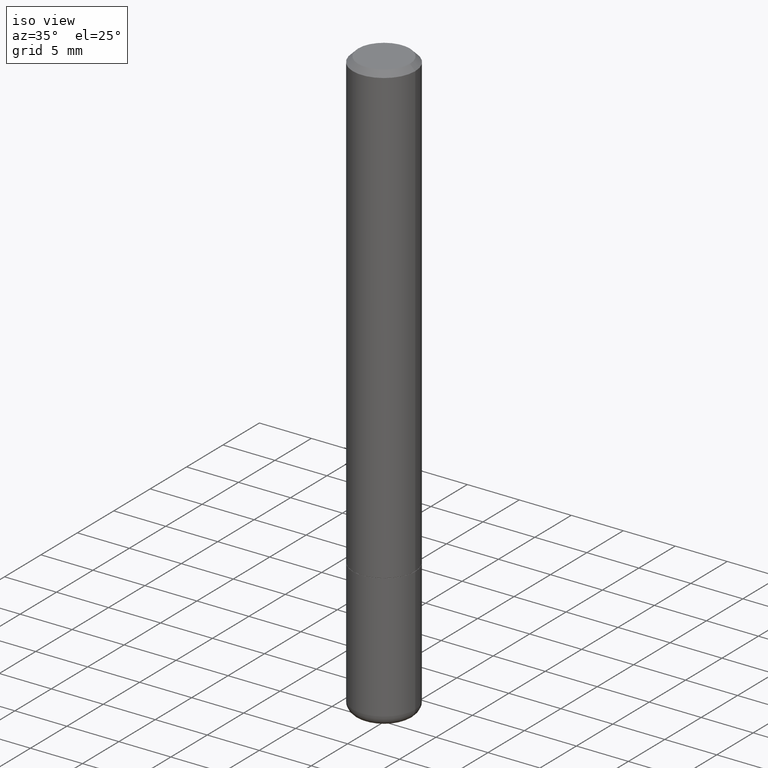
[diagram: clean part render]
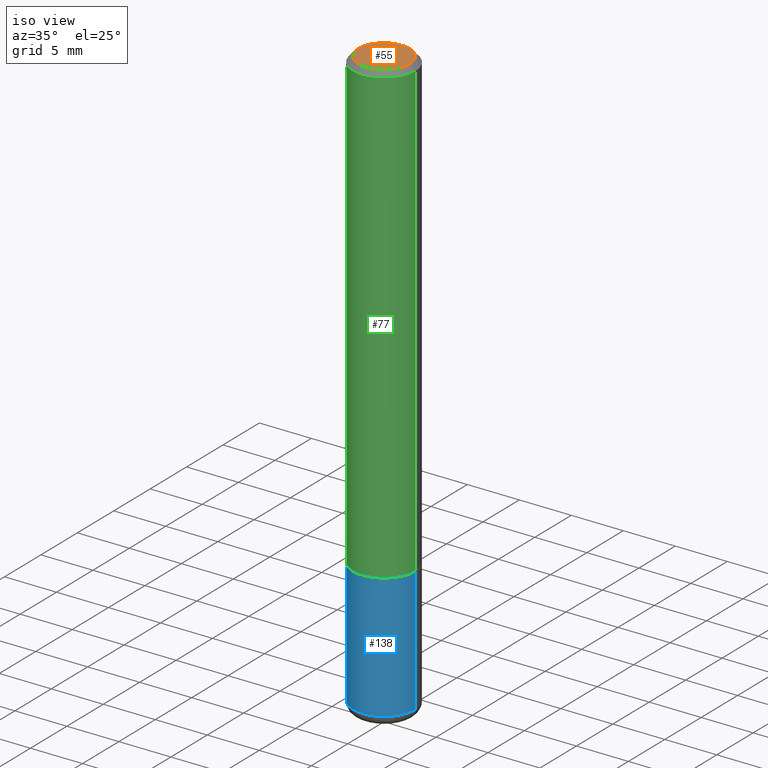
[diagram: same view with three faces highlighted in distinct colors, each labeled with its STEP entity id]
A machine part, iso view with three faces highlighted in distinct colors.
Their STEP definitions:

[orange] entity #55 — the highlighted planar face has unit normal (0, -0, -1).
#3 = CIRCLE ( 'NONE', #148, 0.09809999999999970133 ) ;
#31 = CARTESIAN_POINT ( 'NONE',  ( 6.850286386810205815E-16, 0.09809999999999970133, -1.653710510013444322E-16 ) ) ;
#45 = EDGE_CURVE ( 'NONE', #176, #153, #193, .T. ) ;
#55 = ADVANCED_FACE ( 'NONE', ( #83 ), #209, .F. ) ;
#58 = CARTESIAN_POINT ( 'NONE',  ( -8.663966738982324366E-45, 1.236984831415771234E-30, 3.542865366783341331E-16 ) ) ;
#83 = FACE_OUTER_BOUND ( 'NONE', #290, .T. ) ;
#129 = DIRECTION ( 'NONE',  ( -2.445468806185136597E-29, 3.491481338843145583E-15, 1.000000000000000000 ) ) ;
#148 = AXIS2_PLACEMENT_3D ( 'NONE', #283, #129, #415 ) ;
#152 = ORIENTED_EDGE ( 'NONE', *, *, #197, .T. ) ;
#153 = VERTEX_POINT ( 'NONE', #253 ) ;
#163 = DIRECTION ( 'NONE',  ( -1.000000000000000000, 6.982962677686265922E-15, -4.876176775795935793E-29 ) ) ;
#176 = VERTEX_POINT ( 'NONE', #192 ) ;
#192 = CARTESIAN_POINT ( 'NONE',  ( 0.09809999999999970133, -7.765346469475326737E-16, 3.542865366783392114E-16 ) ) ;
#193 = CIRCLE ( 'NONE', #362, 0.09809999999999970133 ) ;
#197 = EDGE_CURVE ( 'NONE', #153, #176, #3, .T. ) ;
#209 = PLANE ( 'NONE',  #296 ) ;
#212 = ORIENTED_EDGE ( 'NONE', *, *, #45, .T. ) ;
#253 = CARTESIAN_POINT ( 'NONE',  ( -0.09809999999999970133, 7.199434520694536111E-16, 3.542865366783292027E-16 ) ) ;
#283 = CARTESIAN_POINT ( 'NONE',  ( -8.663966738982324366E-45, 1.236984831415771234E-30, 3.542865366783341331E-16 ) ) ;
#290 = EDGE_LOOP ( 'NONE', ( #152, #212 ) ) ;
#296 = AXIS2_PLACEMENT_3D ( 'NONE', #31, #316, #163 ) ;
#316 = DIRECTION ( 'NONE',  ( 2.438088387897960049E-29, -3.491481338843145188E-15, -1.000000000000000000 ) ) ;
#362 = AXIS2_PLACEMENT_3D ( 'NONE', #58, #371, #401 ) ;
#371 = DIRECTION ( 'NONE',  ( -2.445468806185136597E-29, 3.491481338843145583E-15, 1.000000000000000000 ) ) ;
#401 = DIRECTION ( 'NONE',  ( 1.000000000000000000, -6.982962677686266711E-15, 4.884890577880263287E-29 ) ) ;
#415 = DIRECTION ( 'NONE',  ( 1.000000000000000000, -6.982962677686266711E-15, 4.884890577880263287E-29 ) ) ;

[blue] entity #138 — the highlighted cylindrical surface (partial cylindrical patch) has radius 2.9997 mm, axis along (-0, 0, 1).
#5 = EDGE_LOOP ( 'NONE', ( #274, #294, #136, #409 ) ) ;
#13 = EDGE_CURVE ( 'NONE', #407, #301, #51, .T. ) ;
#29 = CARTESIAN_POINT ( 'NONE',  ( 4.236285612954512392E-29, -6.048293123277981078E-15, -1.732299999999999951 ) ) ;
#51 = LINE ( 'NONE', #155, #333 ) ;
#59 = EDGE_CURVE ( 'NONE', #301, #81, #231, .T. ) ;
#67 = CARTESIAN_POINT ( 'NONE',  ( 0.1180999999999999966, -8.246878922347480654E-16, 5.758764772215000440E-30 ) ) ;
#75 = DIRECTION ( 'NONE',  ( -2.445468806185136597E-29, 3.491481338843145583E-15, 1.000000000000000000 ) ) ;
#81 = VERTEX_POINT ( 'NONE', #357 ) ;
#86 = EDGE_CURVE ( 'NONE', #242, #81, #388, .T. ) ;
#103 = CARTESIAN_POINT ( 'NONE',  ( 0.000000000000000000, 0.000000000000000000, 0.000000000000000000 ) ) ;
#104 = CARTESIAN_POINT ( 'NONE',  ( 5.391525076996371277E-29, -7.697668907747483125E-15, -2.204700000000000326 ) ) ;
#135 = CARTESIAN_POINT ( 'NONE',  ( -0.1180999999999998995, -6.858517936814806506E-15, -2.204700000000000326 ) ) ;
#136 = ORIENTED_EDGE ( 'NONE', *, *, #86, .T. ) ;
#138 = ADVANCED_FACE ( 'NONE', ( #255 ), #317, .T. ) ;
#155 = CARTESIAN_POINT ( 'NONE',  ( -0.1180999999999999966, 8.391509709326782957E-16, -5.809262341591043784E-30 ) ) ;
#165 = AXIS2_PLACEMENT_3D ( 'NONE', #103, #381, #251 ) ;
#178 = DIRECTION ( 'NONE',  ( -2.445468806185136877E-29, 3.491481338843145188E-15, 1.000000000000000000 ) ) ;
#186 = DIRECTION ( 'NONE',  ( -2.445468806185136877E-29, 3.491481338843145188E-15, 1.000000000000000000 ) ) ;
#231 = CIRCLE ( 'NONE', #402, 0.1180999999999999966 ) ;
#234 = DIRECTION ( 'NONE',  ( 1.000000000000000000, -6.982962677686265133E-15, 0.000000000000000000 ) ) ;
#242 = VERTEX_POINT ( 'NONE', #284 ) ;
#251 = DIRECTION ( 'NONE',  ( 1.000000000000000000, -6.982962677686266711E-15, 4.876176775795936353E-29 ) ) ;
#255 = FACE_OUTER_BOUND ( 'NONE', #5, .T. ) ;
#274 = ORIENTED_EDGE ( 'NONE', *, *, #13, .F. ) ;
#284 = CARTESIAN_POINT ( 'NONE',  ( 0.1180999999999998995, -8.522356799982231388E-15, -2.204700000000000326 ) ) ;
#294 = ORIENTED_EDGE ( 'NONE', *, *, #313, .T. ) ;
#301 = VERTEX_POINT ( 'NONE', #323 ) ;
#313 = EDGE_CURVE ( 'NONE', #407, #242, #414, .T. ) ;
#317 = CYLINDRICAL_SURFACE ( 'NONE', #165, 0.1180999999999999966 ) ;
#323 = CARTESIAN_POINT ( 'NONE',  ( -0.1180999999999999966, -6.033830044580054299E-15, -1.732299999999999951 ) ) ;
#333 = VECTOR ( 'NONE', #178, 39.37007874015748143 ) ;
#349 = AXIS2_PLACEMENT_3D ( 'NONE', #104, #75, #234 ) ;
#357 = CARTESIAN_POINT ( 'NONE',  ( 0.1180999999999999966, -6.872981015512729341E-15, -1.732299999999999951 ) ) ;
#381 = DIRECTION ( 'NONE',  ( -2.445468806185136597E-29, 3.491481338843145583E-15, 1.000000000000000000 ) ) ;
#385 = DIRECTION ( 'NONE',  ( -2.445468806185136597E-29, 3.491481338843145583E-15, 1.000000000000000000 ) ) ;
#387 = VECTOR ( 'NONE', #186, 39.37007874015748143 ) ;
#388 = LINE ( 'NONE', #67, #387 ) ;
#402 = AXIS2_PLACEMENT_3D ( 'NONE', #29, #385, #417 ) ;
#407 = VERTEX_POINT ( 'NONE', #135 ) ;
#409 = ORIENTED_EDGE ( 'NONE', *, *, #59, .F. ) ;
#414 = CIRCLE ( 'NONE', #349, 0.1180999999999999966 ) ;
#417 = DIRECTION ( 'NONE',  ( 1.000000000000000000, -6.982962677686265133E-15, 0.000000000000000000 ) ) ;

[green] entity #77 — the highlighted cylindrical surface (partial cylindrical patch) has radius 2.9997 mm, axis along (-0, 0, 1).
#1 = CARTESIAN_POINT ( 'NONE',  ( 4.890937612370288923E-31, -6.982962677686312563E-17, -0.02000000000000006287 ) ) ;
#7 = ORIENTED_EDGE ( 'NONE', *, *, #195, .T. ) ;
#8 = DIRECTION ( 'NONE',  ( -2.445468806185136877E-29, 3.491481338843145188E-15, 1.000000000000000000 ) ) ;
#18 = VERTEX_POINT ( 'NONE', #346 ) ;
#19 = VECTOR ( 'NONE', #8, 39.37007874015748143 ) ;
#28 = CIRCLE ( 'NONE', #318, 0.1181000000000000383 ) ;
#43 = AXIS2_PLACEMENT_3D ( 'NONE', #386, #352, #233 ) ;
#64 = CARTESIAN_POINT ( 'NONE',  ( 4.233840144148326789E-29, -6.044801641939137282E-15, -1.731299999999999839 ) ) ;
#77 = ADVANCED_FACE ( 'NONE', ( #99 ), #100, .T. ) ;
#78 = ORIENTED_EDGE ( 'NONE', *, *, #124, .F. ) ;
#98 = CARTESIAN_POINT ( 'NONE',  ( -0.1181000000000001215, 8.391509709326791832E-16, -5.809262341591049389E-30 ) ) ;
#99 = FACE_OUTER_BOUND ( 'NONE', #169, .T. ) ;
#100 = CYLINDRICAL_SURFACE ( 'NONE', #43, 0.1181000000000001215 ) ;
#112 = ORIENTED_EDGE ( 'NONE', *, *, #177, .F. ) ;
#124 = EDGE_CURVE ( 'NONE', #299, #368, #28, .T. ) ;
#132 = DIRECTION ( 'NONE',  ( 1.000000000000000000, -6.982962677686266711E-15, 0.000000000000000000 ) ) ;
#137 = LINE ( 'NONE', #391, #19 ) ;
#160 = DIRECTION ( 'NONE',  ( 1.000000000000000000, -6.982962677686268288E-15, 0.000000000000000000 ) ) ;
#169 = EDGE_LOOP ( 'NONE', ( #112, #7, #257, #78 ) ) ;
#177 = EDGE_CURVE ( 'NONE', #183, #299, #321, .T. ) ;
#183 = VERTEX_POINT ( 'NONE', #351 ) ;
#187 = CIRCLE ( 'NONE', #324, 0.1181000000000002048 ) ;
#194 = DIRECTION ( 'NONE',  ( -2.445468806185136597E-29, 3.491481338843145583E-15, 1.000000000000000000 ) ) ;
#195 = EDGE_CURVE ( 'NONE', #183, #18, #187, .T. ) ;
#224 = DIRECTION ( 'NONE',  ( -2.445468806185136877E-29, 3.491481338843145188E-15, 1.000000000000000000 ) ) ;
#233 = DIRECTION ( 'NONE',  ( 1.000000000000000000, -6.982962677686266711E-15, 4.876176775795935793E-29 ) ) ;
#252 = DIRECTION ( 'NONE',  ( -2.445468806185136597E-29, 3.491481338843145583E-15, 1.000000000000000000 ) ) ;
#257 = ORIENTED_EDGE ( 'NONE', *, *, #275, .T. ) ;
#275 = EDGE_CURVE ( 'NONE', #18, #368, #137, .T. ) ;
#299 = VERTEX_POINT ( 'NONE', #364 ) ;
#318 = AXIS2_PLACEMENT_3D ( 'NONE', #1, #252, #132 ) ;
#321 = LINE ( 'NONE', #98, #369 ) ;
#322 = CARTESIAN_POINT ( 'NONE',  ( 0.1181000000000000383, -8.800544403136812319E-16, -0.02000000000000006287 ) ) ;
#324 = AXIS2_PLACEMENT_3D ( 'NONE', #64, #194, #160 ) ;
#346 = CARTESIAN_POINT ( 'NONE',  ( 0.1181000000000002048, -6.869489534173887122E-15, -1.731299999999999839 ) ) ;
#351 = CARTESIAN_POINT ( 'NONE',  ( -0.1181000000000002048, -2.218164663425318543E-15, -1.731299999999999839 ) ) ;
#352 = DIRECTION ( 'NONE',  ( -2.445468806185136597E-29, 3.491481338843145583E-15, 1.000000000000000000 ) ) ;
#364 = CARTESIAN_POINT ( 'NONE',  ( -0.1181000000000000383, 7.548582654578852602E-16, -0.02000000000000006287 ) ) ;
#368 = VERTEX_POINT ( 'NONE', #322 ) ;
#369 = VECTOR ( 'NONE', #224, 39.37007874015748143 ) ;
#386 = CARTESIAN_POINT ( 'NONE',  ( 0.000000000000000000, 0.000000000000000000, 0.000000000000000000 ) ) ;
#391 = CARTESIAN_POINT ( 'NONE',  ( 0.1181000000000001215, -8.246878922347489529E-16, 5.758764772215006046E-30 ) ) ;